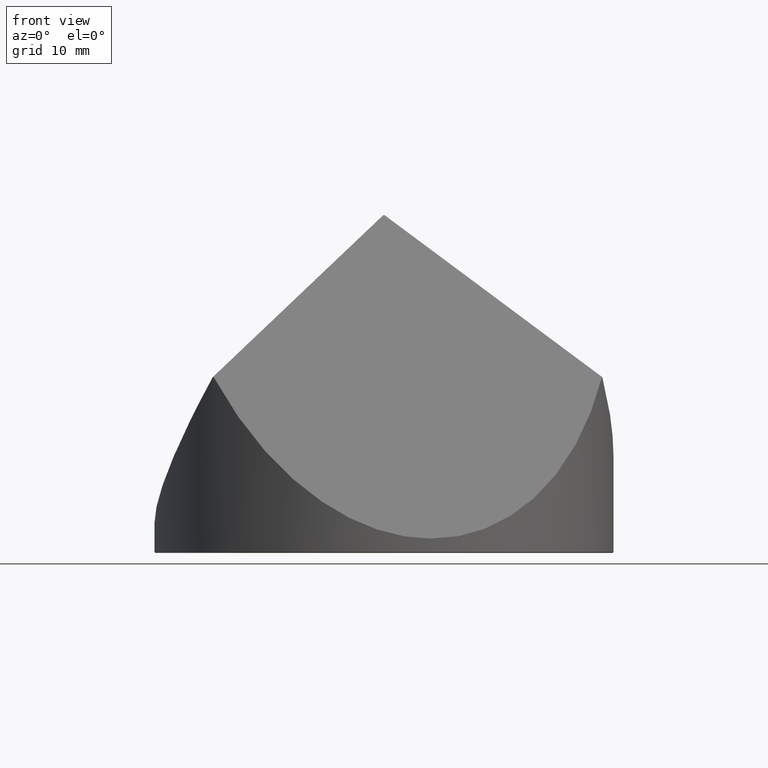
[diagram: clean part render]
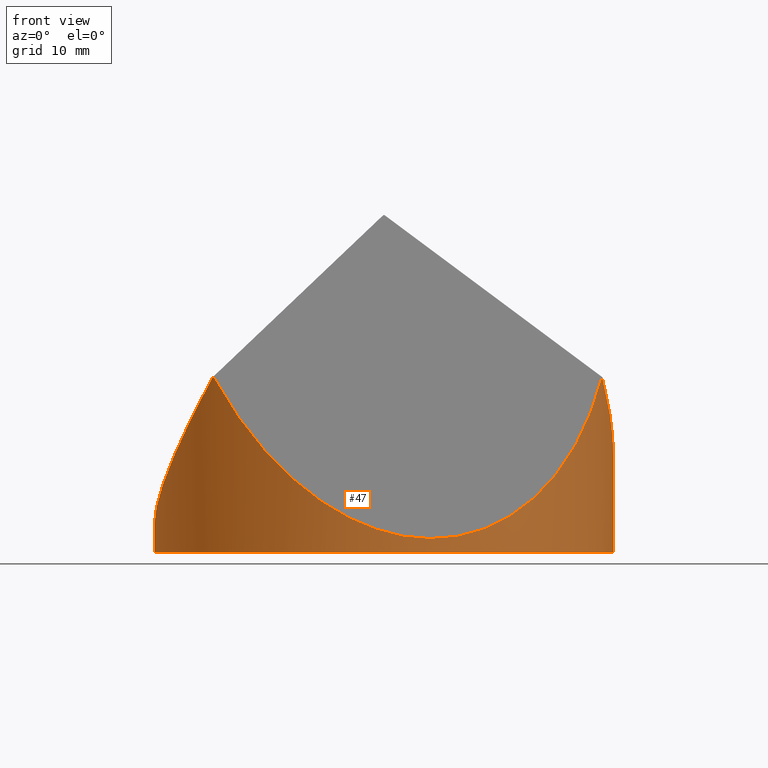
[diagram: same view with one face highlighted and labeled with its STEP entity id]
A machine part, front view. The second image highlights one B-rep face of the part: STEP entity #47.
In plain terms, the highlighted cylindrical surface (partial cylindrical patch) has radius 25.4 mm, axis along (-0, -0, -1).
Its self-contained STEP definition (entity closure, byte-faithful):
#9 =( BOUNDED_CURVE ( )  B_SPLINE_CURVE ( 3, ( #313, #254, #119, #168 ),
 .UNSPECIFIED., .F., .F. ) 
 B_SPLINE_CURVE_WITH_KNOTS ( ( 4, 4 ),
 ( 0.3159145209226036921, 1.044413662635419904 ),
 .UNSPECIFIED. ) 
 CURVE ( )  GEOMETRIC_REPRESENTATION_ITEM ( )  RATIONAL_B_SPLINE_CURVE ( ( 1.000000000000000000, 0.9562609088465704454, 0.9562609088465704454, 1.000000000000000000 ) ) 
 REPRESENTATION_ITEM ( '' )  );
#12 = ORIENTED_EDGE ( 'NONE', *, *, #241, .T. ) ;
#15 = VERTEX_POINT ( 'NONE', #128 ) ;
#19 = CIRCLE ( 'NONE', #327, 25.39999999999999858 ) ;
#21 = DIRECTION ( 'NONE',  ( -0.000000000000000000, -0.000000000000000000, -1.000000000000000000 ) ) ;
#23 =( BOUNDED_CURVE ( )  B_SPLINE_CURVE ( 3, ( #138, #304, #52, #51 ),
 .UNSPECIFIED., .F., .T. ) 
 B_SPLINE_CURVE_WITH_KNOTS ( ( 4, 4 ),
 ( 5.238771644544163664, 5.551902276905597233 ),
 .UNSPECIFIED. ) 
 CURVE ( )  GEOMETRIC_REPRESENTATION_ITEM ( )  RATIONAL_B_SPLINE_CURVE ( ( 1.000000000000000000, 0.9918457778570393124, 0.9918457778570393124, 1.000000000000000000 ) ) 
 REPRESENTATION_ITEM ( '' )  );
#28 = CARTESIAN_POINT ( 'NONE',  ( 24.15037539174727499, -7.869027301477095726, 18.91337426047529746 ) ) ;
#29 =( BOUNDED_CURVE ( )  B_SPLINE_CURVE ( 3, ( #110, #147, #124, #283 ),
 .UNSPECIFIED., .F., .F. ) 
 B_SPLINE_CURVE_WITH_KNOTS ( ( 4, 4 ),
 ( 6.280401418618429155, 6.285969195740780613 ),
 .UNSPECIFIED. ) 
 CURVE ( )  GEOMETRIC_REPRESENTATION_ITEM ( )  RATIONAL_B_SPLINE_CURVE ( ( 1.000000000000000000, 0.9999974166564946643, 0.9999974166564946643, 1.000000000000000000 ) ) 
 REPRESENTATION_ITEM ( '' )  );
#42 = ORIENTED_EDGE ( 'NONE', *, *, #174, .F. ) ;
#47 = ADVANCED_FACE ( 'NONE', ( #357 ), #187, .T. ) ;
#51 = CARTESIAN_POINT ( 'NONE',  ( 25.39999999999999858, 3.110602869834276865E-15, 10.22384084278788308 ) ) ;
#52 = CARTESIAN_POINT ( 'NONE',  ( 25.40000000000000924, -2.662061765035191208, 12.73801817858958607 ) ) ;
#55 = VECTOR ( 'NONE', #336, 1000.000000000000000 ) ;
#73 =( BOUNDED_CURVE ( )  B_SPLINE_CURVE ( 3, ( #116, #28, #310, #167 ),
 .UNSPECIFIED., .F., .T. ) 
 B_SPLINE_CURVE_WITH_KNOTS ( ( 4, 4 ),
 ( 6.280401418618504650, 6.285969195740848114 ),
 .UNSPECIFIED. ) 
 CURVE ( )  GEOMETRIC_REPRESENTATION_ITEM ( )  RATIONAL_B_SPLINE_CURVE ( ( 1.000000000000000000, 0.9999974166564946643, 0.9999974166564946643, 1.000000000000000000 ) ) 
 REPRESENTATION_ITEM ( '' )  );
#75 = DIRECTION ( 'NONE',  ( 0.000000000000000000, 0.000000000000000000, 1.000000000000000000 ) ) ;
#89 = ORIENTED_EDGE ( 'NONE', *, *, #252, .F. ) ;
#95 =( BOUNDED_CURVE ( )  B_SPLINE_CURVE ( 3, ( #159, #274, #243, #240 ),
 .UNSPECIFIED., .F., .T. ) 
 B_SPLINE_CURVE_WITH_KNOTS ( ( 4, 4 ),
 ( 5.238771644544156558, 7.327598969815005248 ),
 .UNSPECIFIED. ) 
 CURVE ( )  GEOMETRIC_REPRESENTATION_ITEM ( )  RATIONAL_B_SPLINE_CURVE ( ( 1.000000000000000000, 0.6682726517290241697, 0.6682726517290241697, 1.000000000000000000 ) ) 
 REPRESENTATION_ITEM ( '' )  );
#107 = CARTESIAN_POINT ( 'NONE',  ( 24.12095888907871455, -7.958601778665308046, 18.91346705688044239 ) ) ;
#110 = CARTESIAN_POINT ( 'NONE',  ( -18.85838602259694241, -17.01532475807383804, 18.91346705688074437 ) ) ;
#111 = EDGE_CURVE ( 'NONE', #263, #148, #95, .T. ) ;
#115 = CARTESIAN_POINT ( 'NONE',  ( -18.85838602259694241, -17.01532475807383804, 18.91346705688074437 ) ) ;
#116 = CARTESIAN_POINT ( 'NONE',  ( 24.16489650543270074, -7.824178990905487296, 18.91346705688055252 ) ) ;
#119 = CARTESIAN_POINT ( 'NONE',  ( -23.15264638311981571, -12.20290073756595639, 11.19974324389854559 ) ) ;
#123 = VERTEX_POINT ( 'NONE', #328 ) ;
#124 = CARTESIAN_POINT ( 'NONE',  ( -18.92144690364426651, -16.94523736352709875, 18.91337426047528680 ) ) ;
#126 = EDGE_CURVE ( 'NONE', #155, #15, #19, .T. ) ;
#127 = VERTEX_POINT ( 'NONE', #298 ) ;
#128 = CARTESIAN_POINT ( 'NONE',  ( 25.39999999999999858, 3.110602869834276865E-15, -0.4400000000000237055 ) ) ;
#129 = ORIENTED_EDGE ( 'NONE', *, *, #169, .F. ) ;
#130 = CARTESIAN_POINT ( 'NONE',  ( 25.39999999999999858, 3.110602869834276865E-15, 10.22384084278788308 ) ) ;
#132 = ORIENTED_EDGE ( 'NONE', *, *, #210, .T. ) ;
#138 = CARTESIAN_POINT ( 'NONE',  ( 24.16489650543270074, -7.824178990905487296, 18.91346705688055252 ) ) ;
#145 = ORIENTED_EDGE ( 'NONE', *, *, #261, .T. ) ;
#147 = CARTESIAN_POINT ( 'NONE',  ( -18.88996524202608995, -16.98032494944516912, 18.91337426047529036 ) ) ;
#148 = VERTEX_POINT ( 'NONE', #107 ) ;
#155 = VERTEX_POINT ( 'NONE', #331 ) ;
#159 = CARTESIAN_POINT ( 'NONE',  ( -18.85838602259694241, -17.01532475807383804, 18.91346705688074437 ) ) ;
#160 = DIRECTION ( 'NONE',  ( -1.000000000000000000, 0.000000000000000000, 0.000000000000000000 ) ) ;
#167 = CARTESIAN_POINT ( 'NONE',  ( 24.12095888907871455, -7.958601778665308046, 18.91346705688044239 ) ) ;
#168 = CARTESIAN_POINT ( 'NONE',  ( -18.95283076346759898, -16.91006227224950820, 18.91346705688047081 ) ) ;
#169 = EDGE_CURVE ( 'NONE', #355, #15, #245, .T. ) ;
#171 = ORIENTED_EDGE ( 'NONE', *, *, #126, .T. ) ;
#174 = EDGE_CURVE ( 'NONE', #127, #355, #23, .T. ) ;
#185 = DIRECTION ( 'NONE',  ( -1.000000000000000000, 0.000000000000000000, 0.000000000000000000 ) ) ;
#187 = CYLINDRICAL_SURFACE ( 'NONE', #188, 25.39999999999999858 ) ;
#188 = AXIS2_PLACEMENT_3D ( 'NONE', #305, #21, #160 ) ;
#194 = CARTESIAN_POINT ( 'NONE',  ( 25.39999999999999858, 3.110602869834276865E-15, 19.00000000000000000 ) ) ;
#210 = EDGE_CURVE ( 'NONE', #127, #148, #73, .T. ) ;
#213 = CARTESIAN_POINT ( 'NONE',  ( 0.000000000000000000, 0.000000000000000000, -0.4400000000000237055 ) ) ;
#234 = VERTEX_POINT ( 'NONE', #249 ) ;
#240 = CARTESIAN_POINT ( 'NONE',  ( 24.12095888907871455, -7.958601778665308046, 18.91346705688044239 ) ) ;
#241 = EDGE_CURVE ( 'NONE', #123, #155, #277, .T. ) ;
#243 = CARTESIAN_POINT ( 'NONE',  ( 17.25624912604057570, -28.76418881325986376, -7.876024622089468963 ) ) ;
#245 = LINE ( 'NONE', #194, #55 ) ;
#247 = CARTESIAN_POINT ( 'NONE',  ( -25.39999999999999858, 0.000000000000000000, 19.00000000000000000 ) ) ;
#249 = CARTESIAN_POINT ( 'NONE',  ( -18.95283076346759898, -16.91006227224950820, 18.91346705688047081 ) ) ;
#252 = EDGE_CURVE ( 'NONE', #123, #234, #9, .T. ) ;
#254 = CARTESIAN_POINT ( 'NONE',  ( -25.39999999999999503, -6.308392897773503982, 5.588881620662570882 ) ) ;
#261 = EDGE_CURVE ( 'NONE', #263, #234, #29, .T. ) ;
#263 = VERTEX_POINT ( 'NONE', #115 ) ;
#265 = VECTOR ( 'NONE', #364, 1000.000000000000000 ) ;
#274 = CARTESIAN_POINT ( 'NONE',  ( -4.181779598949180610, -33.28166779731227365, -7.876024622089304650 ) ) ;
#277 = LINE ( 'NONE', #247, #265 ) ;
#283 = CARTESIAN_POINT ( 'NONE',  ( -18.95283076346759898, -16.91006227224950820, 18.91346705688047081 ) ) ;
#294 = EDGE_LOOP ( 'NONE', ( #129, #42, #132, #316, #145, #89, #12, #171 ) ) ;
#298 = CARTESIAN_POINT ( 'NONE',  ( 24.16489650543270074, -7.824178990905487296, 18.91346705688055252 ) ) ;
#304 = CARTESIAN_POINT ( 'NONE',  ( 24.98491413277447748, -5.291562965584819089, 15.65837347578350602 ) ) ;
#305 = CARTESIAN_POINT ( 'NONE',  ( 0.000000000000000000, 0.000000000000000000, 19.00000000000000000 ) ) ;
#310 = CARTESIAN_POINT ( 'NONE',  ( 24.13572948179385946, -7.913835013150748665, 18.91337426047530457 ) ) ;
#313 = CARTESIAN_POINT ( 'NONE',  ( -25.39999999999999858, 0.000000000000000000, 2.817124151136544796 ) ) ;
#316 = ORIENTED_EDGE ( 'NONE', *, *, #111, .F. ) ;
#327 = AXIS2_PLACEMENT_3D ( 'NONE', #213, #75, #185 ) ;
#328 = CARTESIAN_POINT ( 'NONE',  ( -25.39999999999999858, 0.000000000000000000, 2.817124151136544796 ) ) ;
#331 = CARTESIAN_POINT ( 'NONE',  ( -25.39999999999999858, 0.000000000000000000, -0.4400000000000237055 ) ) ;
#336 = DIRECTION ( 'NONE',  ( -0.000000000000000000, -0.000000000000000000, -1.000000000000000000 ) ) ;
#355 = VERTEX_POINT ( 'NONE', #130 ) ;
#357 = FACE_OUTER_BOUND ( 'NONE', #294, .T. ) ;
#364 = DIRECTION ( 'NONE',  ( -0.000000000000000000, -0.000000000000000000, -1.000000000000000000 ) ) ;